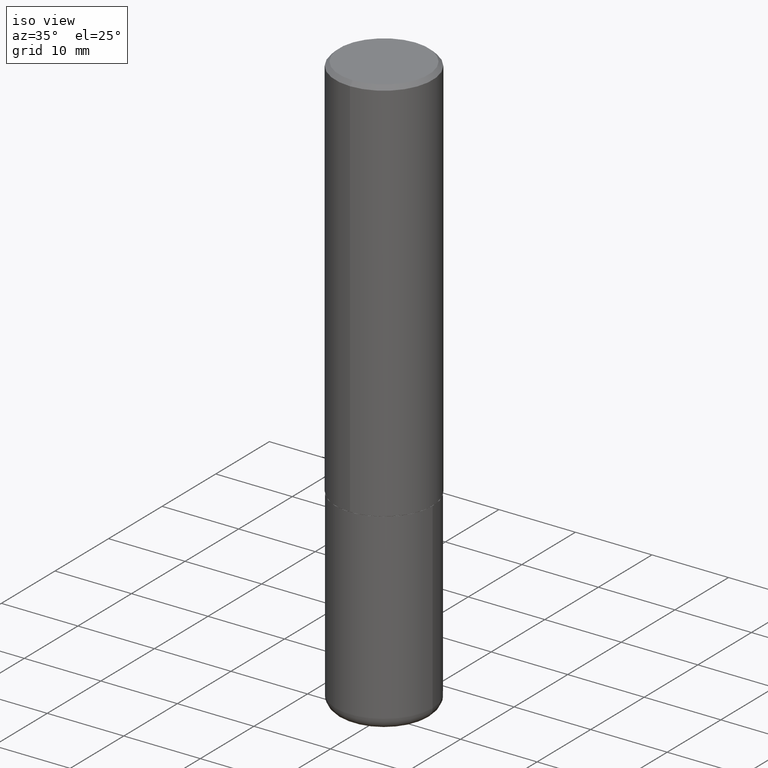
[diagram: clean part render]
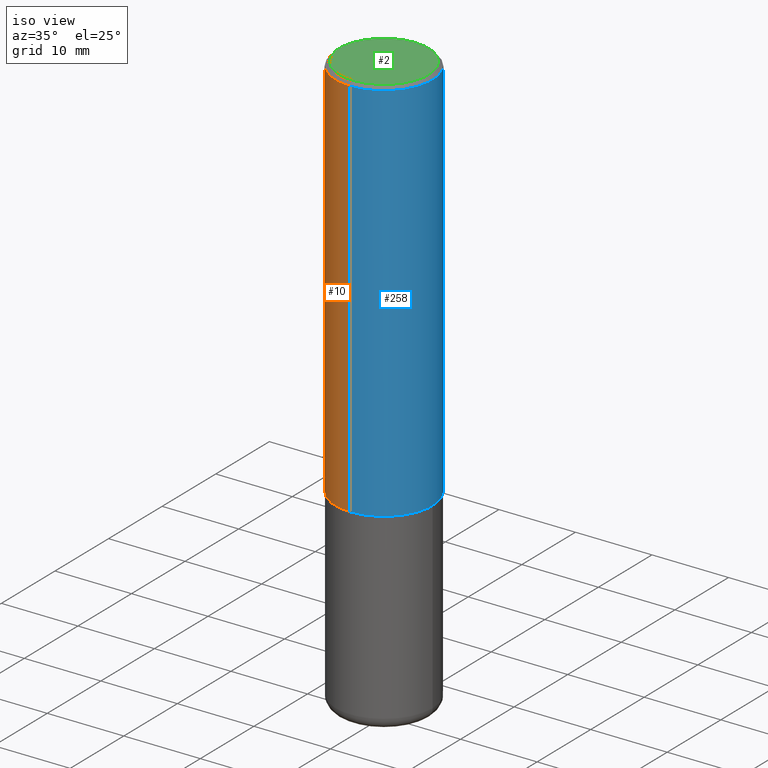
[diagram: same view with three faces highlighted in distinct colors, each labeled with its STEP entity id]
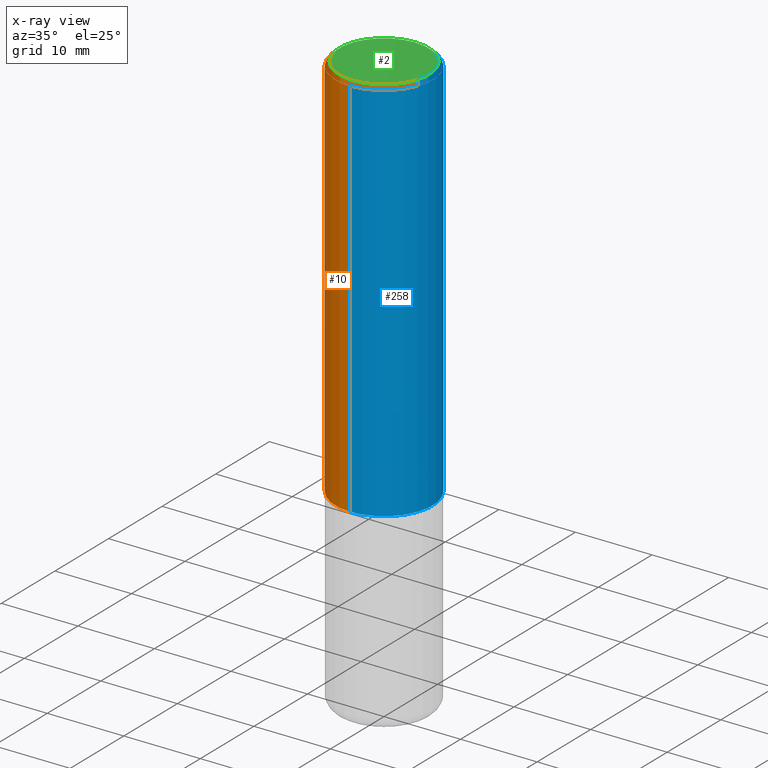
[diagram: x-ray of the same camera — body ghosted, the three highlighted faces saturated]
A machine part, iso view with three faces highlighted in distinct colors.
The next image is the same camera in x-ray (body ghosted, the three faces saturated) — at least one of them is partly hidden behind the body in this view.
Their STEP definitions:

[orange] entity #10 — the highlighted cylindrical surface (partial cylindrical patch) has radius 6.35 mm, axis along (-0, 0, 1).
#10 = ADVANCED_FACE ( 'NONE', ( #150 ), #123, .T. ) ;
#32 = CARTESIAN_POINT ( 'NONE',  ( 1.776356839400276103E-15, 0.2499999999999933109, -1.999000000000000998 ) ) ;
#46 = CARTESIAN_POINT ( 'NONE',  ( 1.776356839400251254E-15, 0.2500000000000001110, -8.733150416511173944E-16 ) ) ;
#49 = DIRECTION ( 'NONE',  ( -6.982962677686265922E-15, -1.000000000000000000, 3.278217592397112312E-15 ) ) ;
#52 = LINE ( 'NONE', #46, #296 ) ;
#53 = ORIENTED_EDGE ( 'NONE', *, *, #131, .T. ) ;
#79 = EDGE_LOOP ( 'NONE', ( #414, #53, #395, #280 ) ) ;
#91 = CARTESIAN_POINT ( 'NONE',  ( -1.745740669421567467E-15, -0.2500000000000001110, 8.733150416511173944E-16 ) ) ;
#95 = LINE ( 'NONE', #91, #279 ) ;
#96 = VERTEX_POINT ( 'NONE', #173 ) ;
#106 = EDGE_CURVE ( 'NONE', #236, #96, #52, .T. ) ;
#111 = VERTEX_POINT ( 'NONE', #267 ) ;
#123 = CYLINDRICAL_SURFACE ( 'NONE', #223, 0.2500000000000001110 ) ;
#131 = EDGE_CURVE ( 'NONE', #236, #111, #194, .T. ) ;
#150 = FACE_OUTER_BOUND ( 'NONE', #79, .T. ) ;
#169 = AXIS2_PLACEMENT_3D ( 'NONE', #247, #190, #253 ) ;
#173 = CARTESIAN_POINT ( 'NONE',  ( 1.745740669421566875E-15, 0.2499999999999999167, -0.02000000000000093023 ) ) ;
#181 = DIRECTION ( 'NONE',  ( -2.444226657398402323E-29, 3.493260166604467606E-15, 1.000000000000000000 ) ) ;
#190 = DIRECTION ( 'NONE',  ( -2.444226657398402323E-29, 3.493260166604467606E-15, 1.000000000000000000 ) ) ;
#194 = CIRCLE ( 'NONE', #329, 0.2500000000000002776 ) ;
#200 = CARTESIAN_POINT ( 'NONE',  ( 4.886009088139406713E-29, -6.983027073042331152E-15, -1.999000000000000110 ) ) ;
#206 = CIRCLE ( 'NONE', #169, 0.2500000000000000000 ) ;
#223 = AXIS2_PLACEMENT_3D ( 'NONE', #248, #355, #378 ) ;
#231 = EDGE_CURVE ( 'NONE', #96, #361, #206, .T. ) ;
#236 = VERTEX_POINT ( 'NONE', #32 ) ;
#247 = CARTESIAN_POINT ( 'NONE',  ( 4.888453314796818974E-31, -6.986520333208953651E-17, -0.02000000000000005593 ) ) ;
#248 = CARTESIAN_POINT ( 'NONE',  ( 0.000000000000000000, 0.000000000000000000, 0.000000000000000000 ) ) ;
#253 = DIRECTION ( 'NONE',  ( -6.982962677686265922E-15, -1.000000000000000000, 3.500180241882337261E-15 ) ) ;
#267 = CARTESIAN_POINT ( 'NONE',  ( -1.745740669421519543E-15, -0.2500000000000072164, -1.998999999999999444 ) ) ;
#279 = VECTOR ( 'NONE', #181, 39.37007874015748143 ) ;
#280 = ORIENTED_EDGE ( 'NONE', *, *, #231, .F. ) ;
#290 = CARTESIAN_POINT ( 'NONE',  ( -1.715124499442882299E-15, -0.2500000000000000555, -0.01999999999999918163 ) ) ;
#296 = VECTOR ( 'NONE', #333, 39.37007874015748143 ) ;
#297 = DIRECTION ( 'NONE',  ( -2.444226657398402323E-29, 3.493260166604467606E-15, 1.000000000000000000 ) ) ;
#329 = AXIS2_PLACEMENT_3D ( 'NONE', #200, #297, #49 ) ;
#333 = DIRECTION ( 'NONE',  ( -2.444226657398402323E-29, 3.493260166604467606E-15, 1.000000000000000000 ) ) ;
#340 = EDGE_CURVE ( 'NONE', #111, #361, #95, .T. ) ;
#355 = DIRECTION ( 'NONE',  ( -2.444226657398402323E-29, 3.493260166604467606E-15, 1.000000000000000000 ) ) ;
#361 = VERTEX_POINT ( 'NONE', #290 ) ;
#378 = DIRECTION ( 'NONE',  ( -6.982962677686266711E-15, -1.000000000000000000, 3.493260166604468000E-15 ) ) ;
#395 = ORIENTED_EDGE ( 'NONE', *, *, #340, .T. ) ;
#414 = ORIENTED_EDGE ( 'NONE', *, *, #106, .F. ) ;

[blue] entity #258 — the highlighted cylindrical surface (partial cylindrical patch) has radius 6.35 mm, axis along (-0, 0, 1).
#13 = DIRECTION ( 'NONE',  ( -2.444226657398402323E-29, 3.493260166604467606E-15, 1.000000000000000000 ) ) ;
#15 = ORIENTED_EDGE ( 'NONE', *, *, #340, .F. ) ;
#16 = DIRECTION ( 'NONE',  ( -2.444226657398402323E-29, 3.493260166604467606E-15, 1.000000000000000000 ) ) ;
#25 = CYLINDRICAL_SURFACE ( 'NONE', #404, 0.2500000000000001110 ) ;
#32 = CARTESIAN_POINT ( 'NONE',  ( 1.776356839400276103E-15, 0.2499999999999933109, -1.999000000000000998 ) ) ;
#46 = CARTESIAN_POINT ( 'NONE',  ( 1.776356839400251254E-15, 0.2500000000000001110, -8.733150416511173944E-16 ) ) ;
#52 = LINE ( 'NONE', #46, #296 ) ;
#54 = DIRECTION ( 'NONE',  ( -2.444226657398402323E-29, 3.493260166604467606E-15, 1.000000000000000000 ) ) ;
#77 = CIRCLE ( 'NONE', #348, 0.2500000000000002776 ) ;
#91 = CARTESIAN_POINT ( 'NONE',  ( -1.745740669421567467E-15, -0.2500000000000001110, 8.733150416511173944E-16 ) ) ;
#95 = LINE ( 'NONE', #91, #279 ) ;
#96 = VERTEX_POINT ( 'NONE', #173 ) ;
#106 = EDGE_CURVE ( 'NONE', #236, #96, #52, .T. ) ;
#111 = VERTEX_POINT ( 'NONE', #267 ) ;
#124 = CARTESIAN_POINT ( 'NONE',  ( 0.000000000000000000, 0.000000000000000000, 0.000000000000000000 ) ) ;
#136 = DIRECTION ( 'NONE',  ( -6.982962677686265922E-15, -1.000000000000000000, 3.500180241882337261E-15 ) ) ;
#142 = EDGE_CURVE ( 'NONE', #361, #96, #176, .T. ) ;
#173 = CARTESIAN_POINT ( 'NONE',  ( 1.745740669421566875E-15, 0.2499999999999999167, -0.02000000000000093023 ) ) ;
#176 = CIRCLE ( 'NONE', #226, 0.2500000000000000000 ) ;
#181 = DIRECTION ( 'NONE',  ( -2.444226657398402323E-29, 3.493260166604467606E-15, 1.000000000000000000 ) ) ;
#208 = CARTESIAN_POINT ( 'NONE',  ( 4.886009088139406713E-29, -6.983027073042331152E-15, -1.999000000000000110 ) ) ;
#217 = EDGE_CURVE ( 'NONE', #111, #236, #77, .T. ) ;
#226 = AXIS2_PLACEMENT_3D ( 'NONE', #371, #16, #136 ) ;
#236 = VERTEX_POINT ( 'NONE', #32 ) ;
#238 = ORIENTED_EDGE ( 'NONE', *, *, #106, .T. ) ;
#258 = ADVANCED_FACE ( 'NONE', ( #323 ), #25, .T. ) ;
#262 = DIRECTION ( 'NONE',  ( -6.982962677686265922E-15, -1.000000000000000000, 3.278217592397112312E-15 ) ) ;
#267 = CARTESIAN_POINT ( 'NONE',  ( -1.745740669421519543E-15, -0.2500000000000072164, -1.998999999999999444 ) ) ;
#279 = VECTOR ( 'NONE', #181, 39.37007874015748143 ) ;
#282 = DIRECTION ( 'NONE',  ( -6.982962677686266711E-15, -1.000000000000000000, 3.493260166604468000E-15 ) ) ;
#290 = CARTESIAN_POINT ( 'NONE',  ( -1.715124499442882299E-15, -0.2500000000000000555, -0.01999999999999918163 ) ) ;
#296 = VECTOR ( 'NONE', #333, 39.37007874015748143 ) ;
#309 = ORIENTED_EDGE ( 'NONE', *, *, #217, .T. ) ;
#323 = FACE_OUTER_BOUND ( 'NONE', #402, .T. ) ;
#333 = DIRECTION ( 'NONE',  ( -2.444226657398402323E-29, 3.493260166604467606E-15, 1.000000000000000000 ) ) ;
#340 = EDGE_CURVE ( 'NONE', #111, #361, #95, .T. ) ;
#348 = AXIS2_PLACEMENT_3D ( 'NONE', #208, #13, #262 ) ;
#361 = VERTEX_POINT ( 'NONE', #290 ) ;
#371 = CARTESIAN_POINT ( 'NONE',  ( 4.888453314796818974E-31, -6.986520333208953651E-17, -0.02000000000000005593 ) ) ;
#402 = EDGE_LOOP ( 'NONE', ( #309, #238, #416, #15 ) ) ;
#404 = AXIS2_PLACEMENT_3D ( 'NONE', #124, #54, #282 ) ;
#416 = ORIENTED_EDGE ( 'NONE', *, *, #142, .F. ) ;

[green] entity #2 — the highlighted planar face has unit normal (0, -0, -1).
#2 = ADVANCED_FACE ( 'NONE', ( #388 ), #319, .F. ) ;
#3 = CARTESIAN_POINT ( 'NONE',  ( -1.646519519465166573E-15, -0.2299999999999997879, 9.532569058576452351E-16 ) ) ;
#18 = AXIS2_PLACEMENT_3D ( 'NONE', #152, #219, #64 ) ;
#21 = ORIENTED_EDGE ( 'NONE', *, *, #292, .T. ) ;
#64 = DIRECTION ( 'NONE',  ( 6.982962677686265922E-15, 1.000000000000000000, -3.493260166604467606E-15 ) ) ;
#108 = ORIENTED_EDGE ( 'NONE', *, *, #311, .T. ) ;
#152 = CARTESIAN_POINT ( 'NONE',  ( 1.606081415867839884E-15, 0.2299999999999997879, -7.285463045497175546E-16 ) ) ;
#192 = AXIS2_PLACEMENT_3D ( 'NONE', #346, #277, #342 ) ;
#199 = AXIS2_PLACEMENT_3D ( 'NONE', #376, #382, #284 ) ;
#202 = VERTEX_POINT ( 'NONE', #366 ) ;
#216 = CIRCLE ( 'NONE', #199, 0.2299999999999997879 ) ;
#219 = DIRECTION ( 'NONE',  ( 2.444226657398401762E-29, -3.493260166604467606E-15, -1.000000000000000000 ) ) ;
#240 = EDGE_LOOP ( 'NONE', ( #21, #108 ) ) ;
#277 = DIRECTION ( 'NONE',  ( -2.444226657398402323E-29, 3.493260166604467606E-15, 1.000000000000000000 ) ) ;
#284 = DIRECTION ( 'NONE',  ( -6.982962677686266711E-15, -1.000000000000000000, 3.493260166604468394E-15 ) ) ;
#292 = EDGE_CURVE ( 'NONE', #202, #315, #405, .T. ) ;
#311 = EDGE_CURVE ( 'NONE', #315, #202, #216, .T. ) ;
#315 = VERTEX_POINT ( 'NONE', #3 ) ;
#319 = PLANE ( 'NONE',  #18 ) ;
#342 = DIRECTION ( 'NONE',  ( -6.982962677686266711E-15, -1.000000000000000000, 3.493260166604468394E-15 ) ) ;
#346 = CARTESIAN_POINT ( 'NONE',  ( -3.661624279445739427E-45, 5.233150617084808964E-31, 1.498070675386184126E-16 ) ) ;
#366 = CARTESIAN_POINT ( 'NONE',  ( 1.675911042644703379E-15, 0.2299999999999997879, -6.536427707804085579E-16 ) ) ;
#376 = CARTESIAN_POINT ( 'NONE',  ( -3.661624279445739427E-45, 5.233150617084808964E-31, 1.498070675386184126E-16 ) ) ;
#382 = DIRECTION ( 'NONE',  ( -2.444226657398402323E-29, 3.493260166604467606E-15, 1.000000000000000000 ) ) ;
#388 = FACE_OUTER_BOUND ( 'NONE', #240, .T. ) ;
#405 = CIRCLE ( 'NONE', #192, 0.2299999999999997879 ) ;